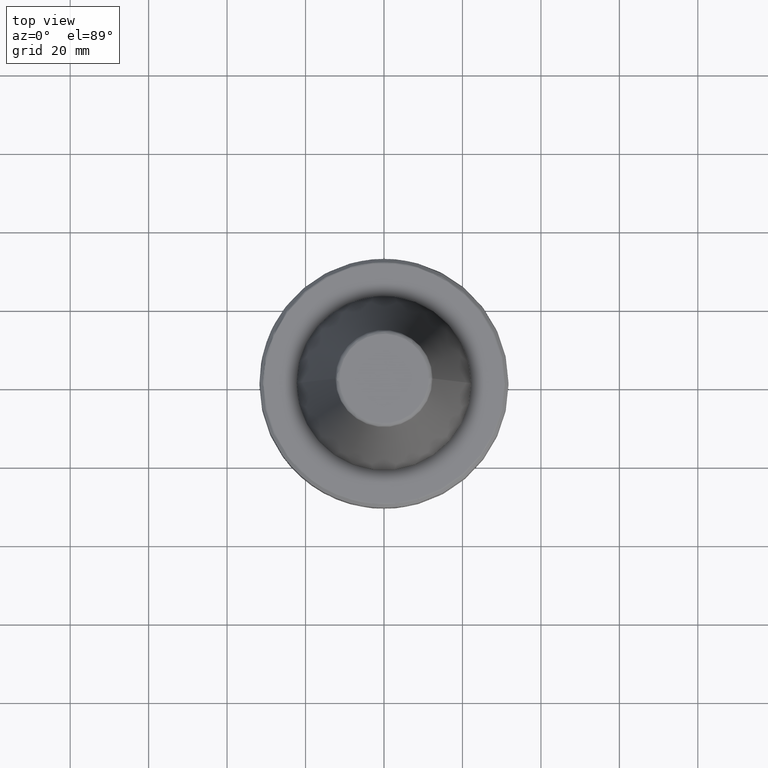
[diagram: clean part render]
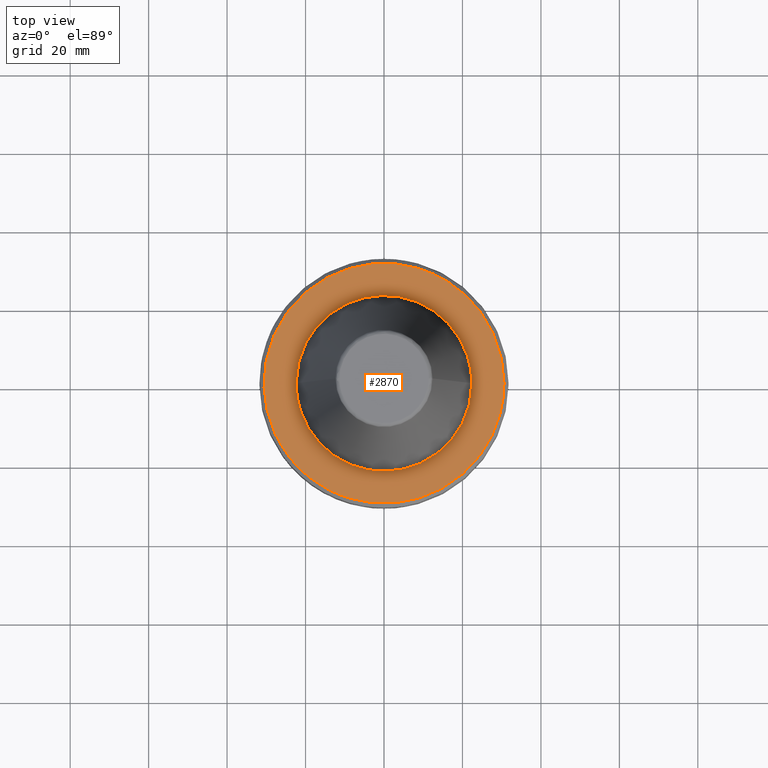
[diagram: same view with one face highlighted and labeled with its STEP entity id]
A machine part, top view. The second image highlights one B-rep face of the part: STEP entity #2870.
In plain terms, the highlighted planar face has unit normal (0, 0, 1).
Its self-contained STEP definition (entity closure, byte-faithful):
#2 = CARTESIAN_POINT ( 'NONE',  ( -20.94241909987582100, 7.949210498685300100, -3.200000000000003300 ) ) ;
#5 = CARTESIAN_POINT ( 'NONE',  ( -11.62329757014452800, 28.33583760078357400, -3.200000000000002400 ) ) ;
#6 = CARTESIAN_POINT ( 'NONE',  ( -21.05388026314446000, 7.652045630583237400, -3.200000000000003300 ) ) ;
#7 = CARTESIAN_POINT ( 'NONE',  ( -24.26260340259809600, 18.63100279130983900, -3.200000000000003700 ) ) ;
#9 = CARTESIAN_POINT ( 'NONE',  ( -8.749999999999962700, 29.30593451889332400, -3.200000000000002800 ) ) ;
#10 = CARTESIAN_POINT ( 'NONE',  ( -16.73340307642833100, 25.61393462944964800, -3.200000000000003700 ) ) ;
#14 = CARTESIAN_POINT ( 'NONE',  ( -17.50055599941003200, 25.08445269890840400, -3.200000000000003300 ) ) ;
#15 = CARTESIAN_POINT ( 'NONE',  ( -23.17496761740579100, 19.96233499371095000, -3.200000000000003300 ) ) ;
#17 = CARTESIAN_POINT ( 'NONE',  ( -21.26570261125549500, 7.054554276574882500, -3.200000000000003300 ) ) ;
#19 = ORIENTED_EDGE ( 'NONE', *, *, #1304, .T. ) ;
#20 = CARTESIAN_POINT ( 'NONE',  ( -21.64494739377256500, 5.846925097341269000, -3.200000000000004200 ) ) ;
#23 = CARTESIAN_POINT ( 'NONE',  ( -23.67667543167816300, 19.36078262650633500, -3.200000000000003700 ) ) ;
#24 = CARTESIAN_POINT ( 'NONE',  ( 18.53468170720398700, 12.57918310160851200, -3.200000000000003300 ) ) ;
#25 = CARTESIAN_POINT ( 'NONE',  ( -13.53928854121346100, 27.43651020382968800, -3.200000000000002400 ) ) ;
#31 = CARTESIAN_POINT ( 'NONE',  ( -21.89390021243578500, 4.790134707340608400, -3.200000000000003700 ) ) ;
#34 = CARTESIAN_POINT ( 'NONE',  ( -22.03016962878425400, 4.053654801116158200, -3.200000000000003700 ) ) ;
#36 = CARTESIAN_POINT ( 'NONE',  ( -22.03380064768137800, 4.033863417743302400, -3.200000000000005100 ) ) ;
#39 = CARTESIAN_POINT ( 'NONE',  ( -22.39999999999999900, 2.743208830090071000E-015, -3.200000000000002800 ) ) ;
#44 = CARTESIAN_POINT ( 'NONE',  ( -22.04146974406501200, 3.991746215251227500, -3.200000000000003300 ) ) ;
#45 = CARTESIAN_POINT ( 'NONE',  ( -24.82288649365629100, 17.88588114724057800, -3.200000000000002000 ) ) ;
#49 = CARTESIAN_POINT ( 'NONE',  ( -22.05288208987398900, 3.928562165309797300, -3.200000000000004200 ) ) ;
#52 = CARTESIAN_POINT ( 'NONE',  ( -22.07887180539631800, 3.781074992023178100, -3.200000000000003700 ) ) ;
#54 = CARTESIAN_POINT ( 'NONE',  ( -20.86055755905005400, 8.160831267535913400, -3.200000000000002800 ) ) ;
#55 = CARTESIAN_POINT ( 'NONE',  ( -30.46677238502198600, 2.680059272108629400, -3.200000000000003300 ) ) ;
#56 = CARTESIAN_POINT ( 'NONE',  ( -22.12829487097974400, 3.485869751756840900, -3.200000000000003700 ) ) ;
#61 = CARTESIAN_POINT ( 'NONE',  ( -22.21691554030176600, 2.894535696451789400, -3.200000000000002800 ) ) ;
#69 = CARTESIAN_POINT ( 'NONE',  ( -22.35325503156639800, 1.708173286752138400, -3.200000000000002800 ) ) ;
#71 = CARTESIAN_POINT ( 'NONE',  ( -29.48124923291816700, -8.141340568239183300, -3.200000000000004200 ) ) ;
#75 = CARTESIAN_POINT ( 'NONE',  ( 22.40000000000000200, 1.370271814684898400, -3.200000000000003300 ) ) ;
#81 = CARTESIAN_POINT ( 'NONE',  ( 22.03380064768137800, -4.033863417743300600, -3.200000000000005100 ) ) ;
#92 = CARTESIAN_POINT ( 'NONE',  ( 20.07996867655782900, -9.978249319575578400, -3.200000000000002800 ) ) ;
#96 = CARTESIAN_POINT ( 'NONE',  ( 19.73326017959506400, 10.64749210004908500, -3.200000000000003300 ) ) ;
#101 = CARTESIAN_POINT ( 'NONE',  ( -22.40000000000000600, 0.6849581371417911000, -3.200000000000004200 ) ) ;
#102 = CARTESIAN_POINT ( 'NONE',  ( 12.41893087787976500, -18.64241366108458600, -3.200000000000002800 ) ) ;
#103 = CARTESIAN_POINT ( 'NONE',  ( -22.39999999999999900, 2.743208830090071000E-015, -3.200000000000002800 ) ) ;
#113 = CARTESIAN_POINT ( 'NONE',  ( 5.317766869424311000, -21.76506777192885900, -3.200000000000003300 ) ) ;
#128 = CARTESIAN_POINT ( 'NONE',  ( -20.54870396913424800, 8.948981895704992700, -3.200000000000004200 ) ) ;
#131 = CARTESIAN_POINT ( 'NONE',  ( -3.928543594394218200, -22.05288552601365700, -3.200000000000003700 ) ) ;
#134 = CARTESIAN_POINT ( 'NONE',  ( -20.89346074650074300, 8.076228125964304300, -3.200000000000003700 ) ) ;
#138 = B_SPLINE_CURVE_WITH_KNOTS ( 'NONE', 3,
 ( #2575, #1870, #5, #25, #1213, #2979, #718, #2032, #1301, #1296, #10, #14, #778, #1236, #2840, #1335, #639, #2357, #15, #2568, #23, #141, #7, #45, #1847, #307, #2100, #576, #2339, #836, #2609, #1086, #2837, #1330, #3045, #1590, #55, #1863, #321, #2111, #587, #2353, #846, #2622, #1102, #2850, #1342, #3054, #1606, #71, #1877, #335, #2125, #602, #2364, #866, #2635, #1114, #2866, #1355, #3066, #1620 ),
 .UNSPECIFIED., .F., .F.,
 ( 4, 1, 1, 1, 1, 2, 2, 1, 2, 2, 2, 1, 1, 2, 2, 1, 1, 1, 2, 2, 2, 1, 1, 1, 1, 2, 2, 1, 2, 2, 2, 1, 1, 2, 2, 1, 1, 1, 2, 2, 4 ),
 ( 0.0000000000000000000, 0.06249999999999977800, 0.09374999999999962500, 0.1093749999999995000, 0.1171874999999993600, 0.1210937499999992900, 0.1249999999999992200, 0.1562499999999992200, 0.1718749999999992200, 0.1874999999999992200, 0.2499999999999996700, 0.2812499999999998300, 0.2968750000000000600, 0.3046875000000001100, 0.3125000000000002200, 0.3437500000000007800, 0.3593750000000011100, 0.3671875000000011700, 0.3710937500000012200, 0.3750000000000012800, 0.5000000000000000000, 0.5624999999999994400, 0.5937499999999991100, 0.6093749999999988900, 0.6171874999999988900, 0.6210937499999988900, 0.6249999999999988900, 0.6562499999999986700, 0.6718749999999984500, 0.6874999999999983300, 0.7499999999999978900, 0.7812499999999976700, 0.7968749999999975600, 0.8046874999999974500, 0.8124999999999973400, 0.8437499999999972200, 0.8593749999999970000, 0.8671874999999970000, 0.8710937499999971100, 0.8749999999999972200, 1.000000000000000000 ),
 .UNSPECIFIED. ) ;
#141 = CARTESIAN_POINT ( 'NONE',  ( -23.77638626441127900, 19.23818591257622800, -3.200000000000003700 ) ) ;
#143 = CARTESIAN_POINT ( 'NONE',  ( -11.93926672244148300, -18.95319761216261500, -3.200000000000003700 ) ) ;
#145 = CARTESIAN_POINT ( 'NONE',  ( -24.35467712833948200, -18.50000000000000000, -3.199999999999994400 ) ) ;
#147 = AXIS2_PLACEMENT_3D ( 'NONE', #415, #407, #391 ) ;
#165 = CARTESIAN_POINT ( 'NONE',  ( -20.57597625708056900, -8.857439276874359300, -3.200000000000003300 ) ) ;
#173 = CARTESIAN_POINT ( 'NONE',  ( 3.485802656817007500, 22.12830728541987600, -3.200000000000003700 ) ) ;
#177 = DIRECTION ( 'NONE',  ( -1.000000000000000000, 0.0000000000000000000, 0.0000000000000000000 ) ) ;
#178 = CARTESIAN_POINT ( 'NONE',  ( -19.16283711800834800, -11.62407890262997300, -3.200000000000004200 ) ) ;
#180 = DIRECTION ( 'NONE',  ( -0.0000000000000000000, -0.0000000000000000000, -1.000000000000000000 ) ) ;
#185 = CARTESIAN_POINT ( 'NONE',  ( 0.0000000000000000000, 0.0000000000000000000, -3.199999999999994400 ) ) ;
#194 = CARTESIAN_POINT ( 'NONE',  ( 21.99665153889302300, 4.232134916936443500, -3.200000000000003700 ) ) ;
#208 = CARTESIAN_POINT ( 'NONE',  ( 11.13317075176899700, 19.44402825676657900, -3.200000000000003300 ) ) ;
#216 = CARTESIAN_POINT ( 'NONE',  ( -10.64749210004020900, 19.73326017959945800, -3.200000000000003300 ) ) ;
#235 = FACE_OUTER_BOUND ( 'NONE', #362, .T. ) ;
#298 = CARTESIAN_POINT ( 'NONE',  ( 5.846925097304805700, 21.64494739378783800, -3.200000000000003300 ) ) ;
#307 = CARTESIAN_POINT ( 'NONE',  ( -25.73240088653741600, 16.53138120581128900, -3.200000000000002800 ) ) ;
#308 = CARTESIAN_POINT ( 'NONE',  ( -4.388029393849129700, 21.96633915484307300, -3.200000000000002800 ) ) ;
#312 = CARTESIAN_POINT ( 'NONE',  ( 18.64241366108053200, 12.41893087788442400, -3.200000000000002800 ) ) ;
#317 = VERTEX_POINT ( 'NONE', #2949 ) ;
#321 = CARTESIAN_POINT ( 'NONE',  ( -30.48577087148558800, 2.454392795803311600, -3.200000000000003300 ) ) ;
#333 = CARTESIAN_POINT ( 'NONE',  ( 22.02214483849513400, 4.097019922490422200, -3.200000000000003300 ) ) ;
#335 = CARTESIAN_POINT ( 'NONE',  ( -29.35224666533419600, -8.594763330005156000, -3.200000000000003700 ) ) ;
#343 = CARTESIAN_POINT ( 'NONE',  ( 22.04146974406501200, -3.991746215251227500, -3.200000000000003300 ) ) ;
#344 = CARTESIAN_POINT ( 'NONE',  ( 18.69693224295960100, 12.33667592247526000, -3.200000000000003300 ) ) ;
#349 = CARTESIAN_POINT ( 'NONE',  ( 19.10378740223179500, -11.69915882733411800, -3.200000000000003300 ) ) ;
#361 = CARTESIAN_POINT ( 'NONE',  ( 11.62407890261503100, -19.16283711801731500, -3.200000000000004200 ) ) ;
#362 = EDGE_LOOP ( 'NONE', ( #1489, #531, #1650, #569, #2815, #405, #19 ) ) ;
#371 = CARTESIAN_POINT ( 'NONE',  ( 4.232134916932282400, -21.99665153889404900, -3.200000000000002800 ) ) ;
#381 = CARTESIAN_POINT ( 'NONE',  ( -7.652045630590357900, -21.05388026314313900, -3.200000000000003300 ) ) ;
#391 = DIRECTION ( 'NONE',  ( -1.000000000000000000, 0.0000000000000000000, 0.0000000000000000000 ) ) ;
#405 = ORIENTED_EDGE ( 'NONE', *, *, #909, .F. ) ;
#407 = DIRECTION ( 'NONE',  ( -0.0000000000000000000, -0.0000000000000000000, -1.000000000000000000 ) ) ;
#409 = CARTESIAN_POINT ( 'NONE',  ( -18.53468170720844600, -12.57918310160406400, -3.200000000000003700 ) ) ;
#415 = CARTESIAN_POINT ( 'NONE',  ( 0.0000000000000000000, 0.0000000000000000000, -3.199999999999994400 ) ) ;
#420 = CARTESIAN_POINT ( 'NONE',  ( -20.75691791007927700, -8.420970184736862800, -3.200000000000003700 ) ) ;
#432 = CARTESIAN_POINT ( 'NONE',  ( -20.30988273414216700, -9.461840305410650100, -3.200000000000003300 ) ) ;
#436 = CARTESIAN_POINT ( 'NONE',  ( 22.39999999999999900, 0.0000000000000000000, -3.200000000000002800 ) ) ;
#463 = CARTESIAN_POINT ( 'NONE',  ( 21.09461488815928800, 7.570037086825539800, -3.200000000000003700 ) ) ;
#496 = CARTESIAN_POINT ( 'NONE',  ( -8.552344979802288800, 20.70346857996603900, -3.200000000000003700 ) ) ;
#500 = CARTESIAN_POINT ( 'NONE',  ( -15.29259727033228500, 16.38581280683081000, -3.200000000000004600 ) ) ;
#510 = B_SPLINE_CURVE_WITH_KNOTS ( 'NONE', 3,
 ( #816, #2587, #1071, #2823, #1319, #1573 ),
 .UNSPECIFIED., .F., .F.,
 ( 4, 2, 4 ),
 ( 0.0000000000000000000, 0.5000000000000000000, 1.000000000000000000 ),
 .UNSPECIFIED. ) ;
#531 = ORIENTED_EDGE ( 'NONE', *, *, #1805, .T. ) ;
#551 = CARTESIAN_POINT ( 'NONE',  ( -4.699014149692110300, 21.90294337551173600, -3.200000000000003300 ) ) ;
#562 = CARTESIAN_POINT ( 'NONE',  ( -9.461840305420629700, 20.30988273413888100, -3.200000000000002800 ) ) ;
#569 = ORIENTED_EDGE ( 'NONE', *, *, #2127, .F. ) ;
#576 = CARTESIAN_POINT ( 'NONE',  ( -25.94001894739544800, 16.20252111302404100, -3.200000000000004200 ) ) ;
#587 = CARTESIAN_POINT ( 'NONE',  ( -30.58430088160601200, 0.8252062185720239200, -3.200000000000003700 ) ) ;
#602 = CARTESIAN_POINT ( 'NONE',  ( -28.83626103397130100, -10.22499329440179300, -3.200000000000003300 ) ) ;
#608 = CARTESIAN_POINT ( 'NONE',  ( 21.89390021243320900, -4.790134707354472900, -3.200000000000002800 ) ) ;
#617 = CARTESIAN_POINT ( 'NONE',  ( 18.95319761216143900, -11.93926672244327800, -3.200000000000003300 ) ) ;
#627 = CARTESIAN_POINT ( 'NONE',  ( 9.461840305391049800, -20.30988273415392000, -3.200000000000002400 ) ) ;
#637 = CARTESIAN_POINT ( 'NONE',  ( 4.120618964788525000, -22.01774244189322300, -3.200000000000004200 ) ) ;
#639 = CARTESIAN_POINT ( 'NONE',  ( -21.79932372883452300, 21.46121072406592100, -3.200000000000003700 ) ) ;
#649 = CARTESIAN_POINT ( 'NONE',  ( -5.846925097357520000, -21.64494739376955200, -3.200000000000003300 ) ) ;
#662 = CARTESIAN_POINT ( 'NONE',  ( -8.948981895716038100, -20.54870396912782100, -3.200000000000003300 ) ) ;
#672 = CARTESIAN_POINT ( 'NONE',  ( -19.73326017960384200, -10.64749210002691100, -3.200000000000003300 ) ) ;
#684 = CARTESIAN_POINT ( 'NONE',  ( -20.81054813477575000, -8.287526769646335700, -3.200000000000004600 ) ) ;
#693 = CARTESIAN_POINT ( 'NONE',  ( 8.076228125959295000, 20.89346074650283200, -3.200000000000003300 ) ) ;
#711 = CARTESIAN_POINT ( 'NONE',  ( 3.928543594388940600, 22.05288552601366400, -3.200000000000003300 ) ) ;
#718 = CARTESIAN_POINT ( 'NONE',  ( -15.14158967653345100, 26.57327955334277500, -3.200000000000002800 ) ) ;
#729 = VERTEX_POINT ( 'NONE', #1368 ) ;
#756 = CARTESIAN_POINT ( 'NONE',  ( 13.55154730278610800, 17.90272195340462600, -3.200000000000004600 ) ) ;
#778 = CARTESIAN_POINT ( 'NONE',  ( -18.00675945256307000, 24.72355445173974100, -3.200000000000003700 ) ) ;
#816 = CARTESIAN_POINT ( 'NONE',  ( -18.50000000000000400, -24.35467712833947800, -3.199999999999994400 ) ) ;
#836 = CARTESIAN_POINT ( 'NONE',  ( -27.30134385076007700, 13.99881594513340700, -3.200000000000005100 ) ) ;
#846 = CARTESIAN_POINT ( 'NONE',  ( -30.57722589313795000, -0.7285515701935777500, -3.200000000000003700 ) ) ;
#851 = VERTEX_POINT ( 'NONE', #436 ) ;
#858 = CARTESIAN_POINT ( 'NONE',  ( 22.40000000000000200, -0.6849581371417888800, -3.200000000000003700 ) ) ;
#862 = CIRCLE ( 'NONE', #2423, 30.58431457505075800 ) ;
#866 = CARTESIAN_POINT ( 'NONE',  ( -28.24048383201137500, -11.74385340896537000, -3.200000000000003700 ) ) ;
#872 = CARTESIAN_POINT ( 'NONE',  ( 21.26570261125212700, -7.054554276593086600, -3.200000000000003700 ) ) ;
#881 = CARTESIAN_POINT ( 'NONE',  ( 4.790134707319770000, 21.89390021244450300, -3.200000000000004200 ) ) ;
#885 = CARTESIAN_POINT ( 'NONE',  ( 15.29259727031543800, -16.38581280684516300, -3.200000000000003300 ) ) ;
#897 = CARTESIAN_POINT ( 'NONE',  ( -12.41893087788384500, 18.64241366108111800, -3.200000000000003700 ) ) ;
#900 = CARTESIAN_POINT ( 'NONE',  ( 8.552344979793046400, -20.70346857997073900, -3.200000000000002800 ) ) ;
#909 = EDGE_CURVE ( 'NONE', #729, #2857, #2785, .T. ) ;
#912 = CARTESIAN_POINT ( 'NONE',  ( -17.90272195339482400, 13.55154730279589800, -3.200000000000002800 ) ) ;
#914 = CARTESIAN_POINT ( 'NONE',  ( 2.729104585128947900, -22.27531430456797800, -3.200000000000003300 ) ) ;
#925 = CARTESIAN_POINT ( 'NONE',  ( -8.160831267537076900, -20.86055755904984100, -3.200000000000003700 ) ) ;
#934 = CARTESIAN_POINT ( 'NONE',  ( -14.74595008205984400, -16.93238115508596000, -3.200000000000003300 ) ) ;
#941 = DIRECTION ( 'NONE',  ( -1.000000000000000000, 0.0000000000000000000, 0.0000000000000000000 ) ) ;
#943 = CARTESIAN_POINT ( 'NONE',  ( -11.62407890263757600, 19.16283711800585000, -3.200000000000004600 ) ) ;
#945 = CARTESIAN_POINT ( 'NONE',  ( -22.27534675084375200, -2.728929272683257200, -3.200000000000003700 ) ) ;
#953 = CARTESIAN_POINT ( 'NONE',  ( 12.09879233629374600, 18.85174391189705300, -3.200000000000003300 ) ) ;
#955 = DIRECTION ( 'NONE',  ( -0.0000000000000000000, -0.0000000000000000000, -1.000000000000000000 ) ) ;
#962 = CARTESIAN_POINT ( 'NONE',  ( 0.0000000000000000000, 0.0000000000000000000, -3.199999999999994400 ) ) ;
#994 = AXIS2_PLACEMENT_3D ( 'NONE', #185, #180, #177 ) ;
#1011 = B_SPLINE_CURVE_WITH_KNOTS ( 'NONE', 3,
 ( #2712, #1876, #1934, #2874, #2848, #3065, #3056, #3171, #3085, #3148, #3088, #2775, #2929, #2838, #2686, #2858, #2691, #2864, #2697, #2759, #2872, #2895, #2901, #2908, #2693, #2681, #2714, #2725, #2723, #2936, #2951, #2765, #2968, #2981, #2991, #2998, #3018, #2790, #3036, #3053, #3058, #3069, #2700, #3080, #2773, #3091, #3098, #3110, #3124, #3152, #1678, #2560 ),
 .UNSPECIFIED., .F., .F.,
 ( 4, 1, 1, 1, 1, 2, 2, 1, 1, 1, 1, 2, 2, 1, 1, 1, 2, 2, 2, 1, 1, 1, 2, 2, 1, 1, 1, 1, 2, 2, 1, 1, 1, 1, 2, 2, 4 ),
 ( 0.0000000000000000000, 0.06249999999999986100, 0.09374999999999982000, 0.1093749999999998100, 0.1171874999999997900, 0.1210937499999997500, 0.1249999999999996900, 0.1874999999999996400, 0.2187499999999996700, 0.2343749999999996900, 0.2421874999999997200, 0.2460937499999997500, 0.2499999999999997800, 0.3125000000000011700, 0.3437500000000019400, 0.3593750000000022800, 0.3671875000000023300, 0.3750000000000024400, 0.5000000000000040000, 0.5625000000000046600, 0.5937500000000050000, 0.6093750000000053300, 0.6171875000000054400, 0.6250000000000054400, 0.6875000000000041100, 0.7187500000000034400, 0.7343750000000031100, 0.7421875000000027800, 0.7460937500000027800, 0.7500000000000027800, 0.8125000000000035500, 0.8437500000000037700, 0.8593750000000040000, 0.8671875000000041100, 0.8710937500000041100, 0.8750000000000040000, 1.000000000000000000 ),
 .UNSPECIFIED. ) ;
#1019 = CARTESIAN_POINT ( 'NONE',  ( -8.333249188848311600, 20.79228629974507200, -3.200000000000003300 ) ) ;
#1030 = B_SPLINE_CURVE_WITH_KNOTS ( 'NONE', 3,
 ( #1645, #1630, #1624, #1621, #1618, #1609, #1604, #1597, #1592, #1588, #1582, #1579, #1577, #1570, #1567, #1565, #1558, #1544, #1543, #1538, #1535, #1528, #1523, #1514, #1510, #1502, #1494, #1484, #1473, #1463, #1456, #1454, #1444, #1442, #1423, #1421, #1412, #1408, #1404, #1399, #1395, #1392, #1386, #1378, #1371, #1367, #1364, #1358, #1354, #1347, #1344, #1340 ),
 .UNSPECIFIED., .F., .F.,
 ( 4, 1, 1, 1, 1, 2, 2, 1, 1, 1, 1, 2, 2, 1, 1, 1, 2, 2, 2, 1, 1, 1, 2, 2, 1, 1, 1, 1, 2, 2, 1, 1, 1, 1, 2, 2, 4 ),
 ( 0.0000000000000000000, 0.06250000000000399700, 0.09375000000000605100, 0.1093750000000069500, 0.1171875000000073400, 0.1210937500000075400, 0.1250000000000077200, 0.1875000000000101000, 0.2187500000000112700, 0.2343750000000117400, 0.2421875000000119600, 0.2460937500000120700, 0.2500000000000121600, 0.3125000000000113800, 0.3437500000000108800, 0.3593750000000106600, 0.3671875000000105500, 0.3750000000000104400, 0.5000000000000083300, 0.5625000000000073300, 0.5937500000000069900, 0.6093750000000067700, 0.6171875000000065500, 0.6250000000000064400, 0.6875000000000056600, 0.7187500000000052200, 0.7343750000000051100, 0.7421875000000048800, 0.7460937500000048800, 0.7500000000000047700, 0.8125000000000035500, 0.8437500000000028900, 0.8593750000000025500, 0.8671875000000023300, 0.8710937500000023300, 0.8750000000000022200, 1.000000000000000000 ),
 .UNSPECIFIED. ) ;
#1071 = CARTESIAN_POINT ( 'NONE',  ( -15.48610090928484300, -26.43773944750343200, -3.200000000000003700 ) ) ;
#1086 = CARTESIAN_POINT ( 'NONE',  ( -29.45234853339609400, 8.333223866088882700, -3.200000000000004600 ) ) ;
#1093 = CARTESIAN_POINT ( 'NONE',  ( 14.74595008207914200, 16.93238115506667200, -3.200000000000003700 ) ) ;
#1102 = CARTESIAN_POINT ( 'NONE',  ( -30.49913331157331700, -2.603266312739139600, -3.200000000000003300 ) ) ;
#1111 = AXIS2_PLACEMENT_3D ( 'NONE', #2707, #1162, #1698 ) ;
#1114 = CARTESIAN_POINT ( 'NONE',  ( -28.08831770797742400, -12.10176357994865800, -3.200000000000004200 ) ) ;
#1115 = CARTESIAN_POINT ( 'NONE',  ( -20.07996867657351800, 9.978249319549430400, -3.200000000000002800 ) ) ;
#1119 = CARTESIAN_POINT ( 'NONE',  ( 20.94241909987477300, -7.949210498690993300, -3.200000000000003300 ) ) ;
#1120 = CARTESIAN_POINT ( 'NONE',  ( 21.76506777192249900, 5.317766869450073500, -3.200000000000003300 ) ) ;
#1129 = CARTESIAN_POINT ( 'NONE',  ( 16.93238115510510200, -14.74595008204568100, -3.200000000000002400 ) ) ;
#1141 = CARTESIAN_POINT ( 'NONE',  ( 7.570037086805924400, -21.09461488816414500, -3.200000000000004600 ) ) ;
#1150 = CARTESIAN_POINT ( 'NONE',  ( -0.6848705029595145700, -22.40001621477894400, -3.200000000000003700 ) ) ;
#1162 = DIRECTION ( 'NONE',  ( 0.0000000000000000000, 0.0000000000000000000, 1.000000000000000000 ) ) ;
#1186 = CARTESIAN_POINT ( 'NONE',  ( -18.64241366108287700, -12.41893087788208100, -3.200000000000002800 ) ) ;
#1204 = CARTESIAN_POINT ( 'NONE',  ( -18.80157304491672900, 12.17662042414164600, -3.200000000000003700 ) ) ;
#1213 = CARTESIAN_POINT ( 'NONE',  ( -14.47847139621524800, 26.94337422490333700, -3.200000000000003700 ) ) ;
#1217 = CARTESIAN_POINT ( 'NONE',  ( 3.991735474926031200, 22.04147173132551500, -3.200000000000003300 ) ) ;
#1236 = CARTESIAN_POINT ( 'NONE',  ( -18.25550594147887700, 24.54047191477576800, -3.200000000000003300 ) ) ;
#1291 = CARTESIAN_POINT ( 'NONE',  ( -8.201342719090337900, -20.84466756721534600, -3.200000000000003300 ) ) ;
#1296 = CARTESIAN_POINT ( 'NONE',  ( -15.94270692369018900, 26.10782023935567500, -3.200000000000003700 ) ) ;
#1301 = CARTESIAN_POINT ( 'NONE',  ( -15.33791319425837700, 26.46043628646758000, -3.200000000000003700 ) ) ;
#1302 = CARTESIAN_POINT ( 'NONE',  ( -19.44402825676491300, 11.13317075177488400, -3.200000000000002800 ) ) ;
#1304 = EDGE_CURVE ( 'NONE', #729, #2799, #510, .T. ) ;
#1319 = CARTESIAN_POINT ( 'NONE',  ( -10.51070166330260700, -28.78023418526410300, -3.200000000000003300 ) ) ;
#1325 = CARTESIAN_POINT ( 'NONE',  ( -18.95319761216557500, 11.93926672243639300, -3.200000000000003700 ) ) ;
#1330 = CARTESIAN_POINT ( 'NONE',  ( -30.26424933310202900, 4.488890650636115300, -3.200000000000003300 ) ) ;
#1335 = CARTESIAN_POINT ( 'NONE',  ( -20.45246270162237300, 22.77429056695518400, -3.200000000000003300 ) ) ;
#1338 = CARTESIAN_POINT ( 'NONE',  ( -8.749999999999989300, -29.30593451889331600, -3.200000000000003700 ) ) ;
#1340 = CARTESIAN_POINT ( 'NONE',  ( 30.58431457505076500, 0.0000000000000000000, -3.200000000000002400 ) ) ;
#1342 = CARTESIAN_POINT ( 'NONE',  ( -30.05429890996132500, -5.703788022704041600, -3.200000000000003300 ) ) ;
#1344 = CARTESIAN_POINT ( 'NONE',  ( 30.58431457505075500, -1.561562219173742600, -3.200000000000002000 ) ) ;
#1347 = CARTESIAN_POINT ( 'NONE',  ( 30.46544302000310400, -3.113852862857872800, -3.200000000000003700 ) ) ;
#1349 = CARTESIAN_POINT ( 'NONE',  ( 22.07887180539631100, -3.781074992023176800, -3.200000000000004200 ) ) ;
#1354 = CARTESIAN_POINT ( 'NONE',  ( 30.22027043771730000, -4.705091276933539600, -3.200000000000003300 ) ) ;
#1355 = CARTESIAN_POINT ( 'NONE',  ( -27.05153356261248700, -14.47569103932740800, -3.200000000000003300 ) ) ;
#1358 = CARTESIAN_POINT ( 'NONE',  ( 30.21212539776376400, -4.757131534846872800, -3.200000000000003700 ) ) ;
#1361 = CARTESIAN_POINT ( 'NONE',  ( -2.729104585155505800, 22.27531430456797100, -3.200000000000003300 ) ) ;
#1362 = CARTESIAN_POINT ( 'NONE',  ( 20.86055755904973100, -8.160831267537631100, -3.200000000000003300 ) ) ;
#1364 = CARTESIAN_POINT ( 'NONE',  ( 30.19618385838875300, -4.857303280940390000, -3.200000000000003300 ) ) ;
#1365 = EDGE_CURVE ( 'NONE', #851, #2780, #2277, .T. ) ;
#1367 = CARTESIAN_POINT ( 'NONE',  ( 30.17190452209519300, -5.007473042379780600, -3.200000000000003700 ) ) ;
#1368 = CARTESIAN_POINT ( 'NONE',  ( -18.50000000000000400, -24.35467712833947800, -3.199999999999994400 ) ) ;
#1371 = CARTESIAN_POINT ( 'NONE',  ( 30.11268354679311800, -5.357254148498774300, -3.200000000000003300 ) ) ;
#1373 = CARTESIAN_POINT ( 'NONE',  ( 13.36824904409444200, -17.98107824669717700, -3.200000000000003300 ) ) ;
#1378 = CARTESIAN_POINT ( 'NONE',  ( 29.98396483372048800, -6.054356345111771500, -3.200000000000003300 ) ) ;
#1382 = CARTESIAN_POINT ( 'NONE',  ( 22.39999999999999900, 0.0000000000000000000, -3.200000000000002800 ) ) ;
#1386 = CARTESIAN_POINT ( 'NONE',  ( 29.68542035770125800, -7.438720675837822100, -3.200000000000003700 ) ) ;
#1389 = CARTESIAN_POINT ( 'NONE',  ( 8.287526769647206100, -20.81054813477557300, -3.200000000000002800 ) ) ;
#1392 = CARTESIAN_POINT ( 'NONE',  ( 29.35905586418660800, -8.608449995031669700, -3.200000000000003700 ) ) ;
#1395 = CARTESIAN_POINT ( 'NONE',  ( 29.09460387900148600, -9.429042497913064500, -3.200000000000003300 ) ) ;
#1399 = CARTESIAN_POINT ( 'NONE',  ( 29.07806852478166700, -9.479920520526370400, -3.200000000000002800 ) ) ;
#1400 = CARTESIAN_POINT ( 'NONE',  ( -2.894420676587548900, -22.21693682219911600, -3.200000000000003300 ) ) ;
#1404 = CARTESIAN_POINT ( 'NONE',  ( 29.04560989628995700, -9.578915174260089300, -3.200000000000003300 ) ) ;
#1408 = CARTESIAN_POINT ( 'NONE',  ( 28.99655467840899400, -9.727253638752760200, -3.200000000000002800 ) ) ;
#1412 = CARTESIAN_POINT ( 'NONE',  ( 28.87952157734977400, -10.07230210981365900, -3.200000000000003300 ) ) ;
#1414 = CARTESIAN_POINT ( 'NONE',  ( -11.13317075178937000, -19.44402825675649600, -3.200000000000003300 ) ) ;
#1420 = EDGE_CURVE ( 'NONE', #3112, #317, #1011, .T. ) ;
#1421 = CARTESIAN_POINT ( 'NONE',  ( 28.63517167121677800, -10.75810060091411900, -3.200000000000003300 ) ) ;
#1423 = CARTESIAN_POINT ( 'NONE',  ( 28.10533704289255800, -12.11250377902966100, -3.200000000000003300 ) ) ;
#1431 = CARTESIAN_POINT ( 'NONE',  ( -8.287526769645706900, 20.81054813477602400, -3.200000000000003700 ) ) ;
#1434 = CARTESIAN_POINT ( 'NONE',  ( -22.01774244189307000, -4.120618964789384700, -3.200000000000004600 ) ) ;
#1436 = PLANE ( 'NONE',  #1111 ) ;
#1442 = CARTESIAN_POINT ( 'NONE',  ( 27.58067624822907900, -13.24394569612520900, -3.200000000000003300 ) ) ;
#1444 = CARTESIAN_POINT ( 'NONE',  ( 27.15192223846726800, -14.07778958758799000, -3.200000000000004200 ) ) ;
#1446 = CARTESIAN_POINT ( 'NONE',  ( -22.00934566656799900, -4.165236834190293900, -3.200000000000004200 ) ) ;
#1454 = CARTESIAN_POINT ( 'NONE',  ( 27.10247095660475100, -14.17277443620226400, -3.200000000000004600 ) ) ;
#1456 = CARTESIAN_POINT ( 'NONE',  ( 27.00399422413413900, -14.35953925149104600, -3.200000000000003700 ) ) ;
#1457 = CARTESIAN_POINT ( 'NONE',  ( -20.70346857996706500, -8.552344979799164200, -3.200000000000002800 ) ) ;
#1461 = CARTESIAN_POINT ( 'NONE',  ( -4.165236834191523100, 22.00934566656745500, -3.200000000000003300 ) ) ;
#1463 = CARTESIAN_POINT ( 'NONE',  ( 26.85489300923814000, -14.63881711982511100, -3.200000000000003300 ) ) ;
#1473 = CARTESIAN_POINT ( 'NONE',  ( 26.49728736115015300, -15.28437999707740900, -3.200000000000003300 ) ) ;
#1484 = CARTESIAN_POINT ( 'NONE',  ( 25.74326481165152100, -16.55116382280660400, -3.200000000000002800 ) ) ;
#1489 = ORIENTED_EDGE ( 'NONE', *, *, #1951, .F. ) ;
#1494 = CARTESIAN_POINT ( 'NONE',  ( 25.03042619209957600, -17.59524950981668200, -3.200000000000003700 ) ) ;
#1502 = CARTESIAN_POINT ( 'NONE',  ( 23.51603751682958800, -19.62778218949304700, -3.200000000000004200 ) ) ;
#1510 = CARTESIAN_POINT ( 'NONE',  ( 22.40114452920497700, -20.89129424427457200, -3.200000000000005100 ) ) ;
#1514 = CARTESIAN_POINT ( 'NONE',  ( 21.10604030069152900, -22.13473294562100300, -3.200000000000003300 ) ) ;
#1523 = CARTESIAN_POINT ( 'NONE',  ( 21.03152593330742100, -22.20554153728287600, -3.200000000000004200 ) ) ;
#1528 = CARTESIAN_POINT ( 'NONE',  ( 20.87982665238260400, -22.34825637509866400, -3.200000000000003700 ) ) ;
#1535 = CARTESIAN_POINT ( 'NONE',  ( 20.65127541913195200, -22.56109142495586900, -3.200000000000003300 ) ) ;
#1538 = CARTESIAN_POINT ( 'NONE',  ( 20.11097302516972400, -23.04904609322405300, -3.200000000000003300 ) ) ;
#1542 = CARTESIAN_POINT ( 'NONE',  ( -4.790134707349893400, -21.89390021243405800, -3.200000000000003300 ) ) ;
#1543 = CARTESIAN_POINT ( 'NONE',  ( 19.00230350506911800, -23.99031363749924100, -3.200000000000003300 ) ) ;
#1544 = CARTESIAN_POINT ( 'NONE',  ( 18.00390437553806000, -24.73772846014450600, -3.200000000000002800 ) ) ;
#1558 = CARTESIAN_POINT ( 'NONE',  ( 17.27398592321570800, -25.23910393721158500, -3.200000000000003700 ) ) ;
#1565 = CARTESIAN_POINT ( 'NONE',  ( 17.23321866383767900, -25.26695455757974800, -3.200000000000003700 ) ) ;
#1567 = CARTESIAN_POINT ( 'NONE',  ( 17.14932757287630600, -25.32397030502925300, -3.200000000000003300 ) ) ;
#1570 = CARTESIAN_POINT ( 'NONE',  ( 17.02330348439927500, -25.40916637816325300, -3.200000000000003300 ) ) ;
#1573 = CARTESIAN_POINT ( 'NONE',  ( -8.749999999999989300, -29.30593451889331600, -3.200000000000003700 ) ) ;
#1577 = CARTESIAN_POINT ( 'NONE',  ( 16.72793511370805300, -25.60566437919411700, -3.200000000000003700 ) ) ;
#1579 = CARTESIAN_POINT ( 'NONE',  ( 16.13194971534636200, -25.98948903612863500, -3.200000000000003700 ) ) ;
#1582 = CARTESIAN_POINT ( 'NONE',  ( 14.91898429070602300, -26.72045296948885400, -3.200000000000003700 ) ) ;
#1588 = CARTESIAN_POINT ( 'NONE',  ( 13.84330885029949200, -27.28410426006817200, -3.200000000000003700 ) ) ;
#1590 = CARTESIAN_POINT ( 'NONE',  ( -30.44653720226487400, 2.907181702333923900, -3.200000000000002800 ) ) ;
#1592 = CARTESIAN_POINT ( 'NONE',  ( 13.06437642884064900, -27.65365956857851500, -3.200000000000003300 ) ) ;
#1597 = CARTESIAN_POINT ( 'NONE',  ( 13.02197758003927500, -27.67364674244808900, -3.200000000000002400 ) ) ;
#1604 = CARTESIAN_POINT ( 'NONE',  ( 12.93363446211499300, -27.71504625243790400, -3.200000000000003300 ) ) ;
#1606 = CARTESIAN_POINT ( 'NONE',  ( -29.60519698498038800, -7.688059179645428300, -3.200000000000003300 ) ) ;
#1609 = CARTESIAN_POINT ( 'NONE',  ( 12.80099507030910500, -27.77681930598339500, -3.200000000000003300 ) ) ;
#1612 = CARTESIAN_POINT ( 'NONE',  ( 12.17662042414226100, 18.80157304491611800, -3.200000000000003700 ) ) ;
#1613 = CARTESIAN_POINT ( 'NONE',  ( 22.12829487097975100, -3.485869751756841800, -3.200000000000003700 ) ) ;
#1618 = CARTESIAN_POINT ( 'NONE',  ( 12.49063015165916500, -27.91867295084845700, -3.200000000000003700 ) ) ;
#1620 = CARTESIAN_POINT ( 'NONE',  ( -24.35467712833948200, -18.50000000000000000, -3.199999999999994400 ) ) ;
#1621 = CARTESIAN_POINT ( 'NONE',  ( 11.86640829661450500, -28.19324632028085600, -3.200000000000002800 ) ) ;
#1624 = CARTESIAN_POINT ( 'NONE',  ( 10.60399651554605800, -28.70585737795477500, -3.200000000000003300 ) ) ;
#1626 = CARTESIAN_POINT ( 'NONE',  ( 20.54870396912526700, -8.948981895719937200, -3.200000000000003300 ) ) ;
#1628 = CARTESIAN_POINT ( 'NONE',  ( 21.44498038502154500, 6.542405141285997600, -3.200000000000003700 ) ) ;
#1630 = CARTESIAN_POINT ( 'NONE',  ( 9.497984010094588900, -29.08260568820517700, -3.200000000000004200 ) ) ;
#1636 = CARTESIAN_POINT ( 'NONE',  ( 12.57918310159964800, -18.53468170721171000, -3.200000000000003700 ) ) ;
#1645 = CARTESIAN_POINT ( 'NONE',  ( 8.749999999999978700, -29.30593451889331600, -3.200000000000003700 ) ) ;
#1650 = ORIENTED_EDGE ( 'NONE', *, *, #1420, .T. ) ;
#1651 = CARTESIAN_POINT ( 'NONE',  ( 8.749999999999978700, -29.30593451889331600, -3.200000000000003700 ) ) ;
#1652 = CARTESIAN_POINT ( 'NONE',  ( 6.542405141251660600, -21.44498038503001800, -3.200000000000003300 ) ) ;
#1655 = CARTESIAN_POINT ( 'NONE',  ( 20.57597625707672200, 8.857439276884063500, -3.200000000000003300 ) ) ;
#1666 = CARTESIAN_POINT ( 'NONE',  ( -3.781039048315599300, -22.07887845598923700, -3.200000000000003300 ) ) ;
#1675 = CARTESIAN_POINT ( 'NONE',  ( -4.053654801115866000, -22.03016962878430400, -3.200000000000003300 ) ) ;
#1678 = CARTESIAN_POINT ( 'NONE',  ( 10.24629117983596100, 28.85918037033940600, -3.200000000000003300 ) ) ;
#1685 = CARTESIAN_POINT ( 'NONE',  ( -18.37163761273726700, -12.81838125885408700, -3.200000000000003300 ) ) ;
#1697 = CARTESIAN_POINT ( 'NONE',  ( -21.99665153889350200, -4.232134916935223100, -3.200000000000003300 ) ) ;
#1698 = DIRECTION ( 'NONE',  ( 1.000000000000000000, 0.0000000000000000000, -0.0000000000000000000 ) ) ;
#1708 = CARTESIAN_POINT ( 'NONE',  ( -21.96633915484489900, -4.388029393845010300, -3.200000000000002400 ) ) ;
#1720 = CARTESIAN_POINT ( 'NONE',  ( -21.09461488816156600, -7.570037086819792400, -3.200000000000003300 ) ) ;
#1749 = CARTESIAN_POINT ( 'NONE',  ( 22.00934566656772200, 4.165236834190996400, -3.200000000000003700 ) ) ;
#1782 = CARTESIAN_POINT ( 'NONE',  ( 8.948981895700510900, 20.54870396913551300, -3.200000000000004200 ) ) ;
#1790 = CARTESIAN_POINT ( 'NONE',  ( 21.90294337551341300, 4.699014149688812500, -3.200000000000003300 ) ) ;
#1805 = EDGE_CURVE ( 'NONE', #1806, #3112, #1030, .T. ) ;
#1806 = VERTEX_POINT ( 'NONE', #1651 ) ;
#1837 = CARTESIAN_POINT ( 'NONE',  ( 9.978249319541589600, 20.07996867657573900, -3.200000000000003700 ) ) ;
#1847 = CARTESIAN_POINT ( 'NONE',  ( -25.43598951905045500, 16.98769424003135600, -3.200000000000003300 ) ) ;
#1851 = CARTESIAN_POINT ( 'NONE',  ( 8.201342719091291800, 20.84466756721487400, -3.200000000000003300 ) ) ;
#1863 = CARTESIAN_POINT ( 'NONE',  ( -30.47970956005919900, 2.528533460621357400, -3.200000000000003300 ) ) ;
#1870 = CARTESIAN_POINT ( 'NONE',  ( -9.916519147401958300, 28.95764183663175500, -3.200000000000005100 ) ) ;
#1876 = CARTESIAN_POINT ( 'NONE',  ( 30.58431457505076900, 0.7806124813004626800, -3.200000000000004200 ) ) ;
#1877 = CARTESIAN_POINT ( 'NONE',  ( -29.39627059819342100, -8.442993445798526500, -3.200000000000003300 ) ) ;
#1881 = CARTESIAN_POINT ( 'NONE',  ( 22.05288208987398600, -3.928562165309795500, -3.200000000000002400 ) ) ;
#1894 = CARTESIAN_POINT ( 'NONE',  ( 19.44402825675314600, -11.13317075179449500, -3.200000000000002800 ) ) ;
#1899 = CARTESIAN_POINT ( 'NONE',  ( 19.16283711800332400, 11.62407890264265100, -3.200000000000004200 ) ) ;
#1904 = CARTESIAN_POINT ( 'NONE',  ( 12.33667592247870100, -18.69693224295785000, -3.200000000000003700 ) ) ;
#1911 = CARTESIAN_POINT ( 'NONE',  ( 7.054554276547532900, 21.26570261126695300, -3.200000000000003300 ) ) ;
#1916 = CARTESIAN_POINT ( 'NONE',  ( 4.388029393839321600, -21.96633915484595100, -3.200000000000003300 ) ) ;
#1924 = CARTESIAN_POINT ( 'NONE',  ( -7.054554276587077200, -21.26570261125323600, -3.200000000000003300 ) ) ;
#1934 = CARTESIAN_POINT ( 'NONE',  ( 30.53973774190789600, 1.948180833657367600, -3.200000000000003300 ) ) ;
#1947 = CARTESIAN_POINT ( 'NONE',  ( 11.93926672243432900, 18.95319761216615700, -3.200000000000003300 ) ) ;
#1950 = CARTESIAN_POINT ( 'NONE',  ( -11.69915882733113200, -19.10378740223375300, -3.200000000000003700 ) ) ;
#1951 = EDGE_CURVE ( 'NONE', #1806, #2799, #862, .T. ) ;
#1957 = CARTESIAN_POINT ( 'NONE',  ( 11.69915882731925400, 19.10378740223963200, -3.200000000000003300 ) ) ;
#1961 = CARTESIAN_POINT ( 'NONE',  ( -16.38581280683807900, -15.29259727032501500, -3.200000000000002800 ) ) ;
#1966 = CARTESIAN_POINT ( 'NONE',  ( 16.38581280682843300, 15.29259727033466600, -3.200000000000004200 ) ) ;
#2016 = CARTESIAN_POINT ( 'NONE',  ( -12.81838125885966000, 18.37163761273170000, -3.200000000000003700 ) ) ;
#2032 = CARTESIAN_POINT ( 'NONE',  ( -15.27351905694648500, 26.49765628487122600, -3.200000000000002400 ) ) ;
#2059 = CARTESIAN_POINT ( 'NONE',  ( -14.43493962130356300, 17.15946693210979700, -3.200000000000003300 ) ) ;
#2071 = CARTESIAN_POINT ( 'NONE',  ( 30.58431457505076500, 0.0000000000000000000, -3.200000000000002400 ) ) ;
#2098 = CARTESIAN_POINT ( 'NONE',  ( 20.79228629974476700, 8.333249188848931500, -3.200000000000004200 ) ) ;
#2100 = CARTESIAN_POINT ( 'NONE',  ( -25.85726144148680900, 16.33427142387081300, -3.200000000000003300 ) ) ;
#2102 = CARTESIAN_POINT ( 'NONE',  ( -18.85174391189674700, 12.09879233629482400, -3.200000000000003700 ) ) ;
#2111 = CARTESIAN_POINT ( 'NONE',  ( -30.54018886217135500, 1.756429892729796300, -3.200000000000003700 ) ) ;
#2114 = CARTESIAN_POINT ( 'NONE',  ( -19.10378740223865900, 11.69915882732268200, -3.200000000000003300 ) ) ;
#2117 = CARTESIAN_POINT ( 'NONE',  ( 22.01774244189292800, 4.120618964789740900, -3.200000000000003300 ) ) ;
#2125 = CARTESIAN_POINT ( 'NONE',  ( -29.12987215588217500, -9.340167935495030000, -3.200000000000004200 ) ) ;
#2127 = EDGE_CURVE ( 'NONE', #2232, #317, #3059, .T. ) ;
#2134 = CARTESIAN_POINT ( 'NONE',  ( 22.03016962878432800, -4.053654801115721200, -3.200000000000003300 ) ) ;
#2139 = CARTESIAN_POINT ( 'NONE',  ( -6.542405141293531100, 21.44498038501770800, -3.200000000000003300 ) ) ;
#2144 = CARTESIAN_POINT ( 'NONE',  ( 18.80157304491760700, -12.17662042414044500, -3.200000000000003300 ) ) ;
#2153 = CARTESIAN_POINT ( 'NONE',  ( 10.64749210000075900, -19.73326017961952400, -3.200000000000003300 ) ) ;
#2156 = CARTESIAN_POINT ( 'NONE',  ( -4.120618964790005600, 22.01774244189279300, -3.200000000000004200 ) ) ;
#2160 = CARTESIAN_POINT ( 'NONE',  ( 4.165236834188593000, -22.00934566656831500, -3.200000000000002800 ) ) ;
#2172 = CARTESIAN_POINT ( 'NONE',  ( -7.949210498689112100, -20.94241909987511400, -3.200000000000003300 ) ) ;
#2179 = CARTESIAN_POINT ( 'NONE',  ( -12.17662042414134900, -18.80157304491702400, -3.200000000000003300 ) ) ;
#2182 = CARTESIAN_POINT ( 'NONE',  ( 21.96633915484396800, 4.388029393847367600, -3.200000000000003300 ) ) ;
#2185 = EDGE_CURVE ( 'NONE', #2780, #851, #2238, .T. ) ;
#2186 = CARTESIAN_POINT ( 'NONE',  ( 2.894420676554926500, 22.21693682219913100, -3.200000000000003700 ) ) ;
#2187 = CARTESIAN_POINT ( 'NONE',  ( -22.39999999999999900, 2.743208830090071000E-015, -3.200000000000002800 ) ) ;
#2200 = CARTESIAN_POINT ( 'NONE',  ( -20.79228629974538800, -8.333249188847371900, -3.200000000000003700 ) ) ;
#2232 = VERTEX_POINT ( 'NONE', #9 ) ;
#2236 = CARTESIAN_POINT ( 'NONE',  ( 4.033857983395490600, 22.03380165318768700, -3.200000000000003700 ) ) ;
#2238 = B_SPLINE_CURVE_WITH_KNOTS ( 'NONE', 3,
 ( #103, #101, #69, #61, #56, #52, #49, #44, #36, #34, #31, #20, #17, #6, #2, #134, #54, #2659, #128, #1115, #1302, #2114, #1325, #2102, #1204, #912, #2808, #500, #2059, #2621, #2016, #2732, #897, #2801, #943, #216, #562, #2326, #496, #2939, #1019, #1431, #3113, #2139, #2455, #551, #308, #3121, #1461, #2156, #2731, #1361, #2948, #2319, #2580, #2186, #173, #3211, #711, #1217, #2236, #2379, #881, #298, #1911, #2702, #2290, #693, #3140, #1851, #1782, #1837, #208, #1957, #1947, #953, #1612, #756, #1093, #1966, #2429, #2828, #2885, #24, #312, #344, #1899, #96, #2601, #1655, #2267, #2878, #2098, #2993, #463, #1628, #1120, #1790, #2182, #194, #1749, #2117, #333, #2675, #75, #1382 ),
 .UNSPECIFIED., .F., .F.,
 ( 4, 1, 1, 1, 1, 1, 2, 2, 1, 1, 1, 1, 2, 2, 1, 1, 1, 2, 2, 2, 1, 1, 1, 2, 2, 1, 1, 1, 1, 2, 2, 1, 1, 1, 1, 1, 2, 2, 2, 1, 1, 1, 1, 1, 2, 2, 1, 1, 1, 1, 2, 2, 1, 1, 1, 2, 2, 2, 1, 1, 1, 2, 2, 1, 1, 1, 1, 2, 2, 1, 1, 1, 1, 1, 2, 2, 4 ),
 ( 0.0000000000000000000, 0.03124999999999894500, 0.04687499999999843200, 0.05468749999999818900, 0.05859374999999806400, 0.06054687499999800200, 0.06152343749999798100, 0.06249999999999794600, 0.09374999999999758500, 0.1093749999999973800, 0.1171874999999972500, 0.1210937499999971600, 0.1230468749999971600, 0.1249999999999971400, 0.1562499999999969500, 0.1718749999999969200, 0.1796874999999969200, 0.1835937499999970300, 0.1874999999999971100, 0.2499999999999980000, 0.2812499999999983900, 0.2968749999999985600, 0.3046874999999987200, 0.3085937499999987800, 0.3124999999999988900, 0.3437499999999991100, 0.3593749999999992200, 0.3671874999999993300, 0.3710937499999993900, 0.3730468749999993900, 0.3749999999999993900, 0.4062499999999988900, 0.4218749999999986100, 0.4296874999999985000, 0.4335937499999983900, 0.4355468749999983300, 0.4365234374999983300, 0.4374999999999982800, 0.4999999999999980000, 0.5312499999999977800, 0.5468749999999977800, 0.5546874999999976700, 0.5585937499999976700, 0.5605468749999976700, 0.5615234374999975600, 0.5624999999999975600, 0.5937499999999977800, 0.6093749999999980000, 0.6171874999999980000, 0.6210937499999981100, 0.6230468749999982200, 0.6249999999999982200, 0.6562499999999984500, 0.6718749999999986700, 0.6796874999999986700, 0.6835937499999987800, 0.6874999999999988900, 0.7499999999999980000, 0.7812499999999975600, 0.7968749999999974500, 0.8046874999999973400, 0.8085937499999973400, 0.8124999999999973400, 0.8437499999999973400, 0.8593749999999974500, 0.8671874999999974500, 0.8710937499999974500, 0.8730468749999974500, 0.8749999999999973400, 0.9062499999999981100, 0.9218749999999986700, 0.9296874999999987800, 0.9335937499999988900, 0.9355468749999990000, 0.9365234374999988900, 0.9374999999999988900, 1.000000000000000000 ),
 .UNSPECIFIED. ) ;
#2247 = EDGE_CURVE ( 'NONE', #2232, #2857, #138, .T. ) ;
#2267 = CARTESIAN_POINT ( 'NONE',  ( 20.70346857996501600, 8.552344979804368900, -3.200000000000002800 ) ) ;
#2277 = B_SPLINE_CURVE_WITH_KNOTS ( 'NONE', 3,
 ( #2630, #858, #2861, #3061, #1613, #1349, #1881, #343, #81, #2134, #608, #2372, #872, #2644, #1119, #2869, #1362, #3071, #1626, #92, #1894, #349, #617, #2383, #2144, #2656, #1129, #885, #2875, #1373, #3082, #1636, #102, #1904, #361, #2153, #627, #2393, #900, #2666, #2887, #1389, #1141, #1652, #113, #3093, #1916, #371, #2160, #637, #2411, #914, #2677, #1150, #2898, #1400, #3104, #1666, #131, #2905, #2695, #1675, #1542, #649, #1924, #381, #2172, #2420, #925, #1291, #662, #3126, #1414, #1950, #143, #2922, #2179, #2447, #934, #1961, #2910, #3133, #1685, #409, #1186, #2704, #178, #672, #432, #165, #1457, #420, #2200, #684, #1720, #2800, #2461, #3142, #1708, #1697, #1446, #1434, #3153, #945, #2940, #2187 ),
 .UNSPECIFIED., .F., .F.,
 ( 4, 1, 1, 1, 1, 1, 2, 2, 1, 1, 1, 1, 2, 2, 1, 1, 1, 2, 2, 2, 1, 1, 1, 2, 2, 1, 1, 1, 1, 2, 2, 1, 1, 1, 1, 1, 2, 2, 2, 1, 1, 1, 1, 1, 2, 2, 1, 1, 1, 1, 2, 2, 1, 1, 1, 2, 2, 2, 1, 1, 1, 2, 2, 1, 1, 1, 1, 2, 2, 1, 1, 1, 1, 1, 2, 2, 4 ),
 ( 0.0000000000000000000, 0.03125000000000063100, 0.04687500000000096500, 0.05468750000000111700, 0.05859375000000120000, 0.06054687500000123500, 0.06152343750000125600, 0.06250000000000127700, 0.09375000000000176200, 0.1093750000000020000, 0.1171875000000021200, 0.1210937500000021900, 0.1230468750000022100, 0.1250000000000022200, 0.1562500000000032500, 0.1718750000000037700, 0.1796875000000040200, 0.1835937500000041900, 0.1875000000000043600, 0.2500000000000076100, 0.2812500000000091000, 0.2968750000000098800, 0.3046875000000102700, 0.3085937500000104400, 0.3125000000000106600, 0.3437500000000118800, 0.3593750000000125500, 0.3671875000000128200, 0.3710937500000129900, 0.3730468750000131000, 0.3750000000000132100, 0.4062500000000142700, 0.4218750000000147700, 0.4296875000000149900, 0.4335937500000151500, 0.4355468750000152100, 0.4365234375000152100, 0.4375000000000152100, 0.5000000000000147700, 0.5312500000000145400, 0.5468750000000144300, 0.5546875000000143200, 0.5585937500000143200, 0.5605468750000142100, 0.5615234375000142100, 0.5625000000000142100, 0.5937500000000125500, 0.6093750000000116600, 0.6171875000000112100, 0.6210937500000111000, 0.6230468750000108800, 0.6250000000000107700, 0.6562500000000092100, 0.6718750000000084400, 0.6796875000000081000, 0.6835937500000078800, 0.6875000000000077700, 0.7500000000000048800, 0.7812500000000035500, 0.7968750000000028900, 0.8046875000000025500, 0.8085937500000025500, 0.8125000000000025500, 0.8437500000000021100, 0.8593750000000017800, 0.8671875000000016700, 0.8710937500000015500, 0.8730468750000014400, 0.8750000000000013300, 0.9062500000000010000, 0.9218750000000008900, 0.9296875000000007800, 0.9335937500000007800, 0.9355468750000007800, 0.9365234375000007800, 0.9375000000000008900, 1.000000000000000000 ),
 .UNSPECIFIED. ) ;
#2290 = CARTESIAN_POINT ( 'NONE',  ( 7.949210498676752200, 20.94241909987940900, -3.200000000000003300 ) ) ;
#2319 = CARTESIAN_POINT ( 'NONE',  ( 0.6848705029346544600, 22.40001621477894400, -3.200000000000003300 ) ) ;
#2326 = CARTESIAN_POINT ( 'NONE',  ( -8.857439276880176800, 20.57597625707865100, -3.200000000000003300 ) ) ;
#2339 = CARTESIAN_POINT ( 'NONE',  ( -25.98207429179444700, 16.13498759199492500, -3.200000000000003300 ) ) ;
#2353 = CARTESIAN_POINT ( 'NONE',  ( -30.58574494882112300, -0.1069271606753864200, -3.200000000000004200 ) ) ;
#2357 = CARTESIAN_POINT ( 'NONE',  ( -22.45144644050650100, 20.78517142375533300, -3.200000000000003300 ) ) ;
#2364 = CARTESIAN_POINT ( 'NONE',  ( -28.44688173158047600, -11.24038425301782600, -3.200000000000003300 ) ) ;
#2372 = CARTESIAN_POINT ( 'NONE',  ( 21.64494739376806700, -5.846925097365533100, -3.200000000000003700 ) ) ;
#2379 = CARTESIAN_POINT ( 'NONE',  ( 4.053654801116802100, 22.03016962878398000, -3.200000000000003300 ) ) ;
#2383 = CARTESIAN_POINT ( 'NONE',  ( 18.85174391189457700, -12.09879233629844300, -3.200000000000003700 ) ) ;
#2393 = CARTESIAN_POINT ( 'NONE',  ( 8.857439276862924900, -20.57597625708742200, -3.200000000000003700 ) ) ;
#2411 = CARTESIAN_POINT ( 'NONE',  ( 4.097017183233652400, -22.02214534546819300, -3.200000000000003700 ) ) ;
#2420 = CARTESIAN_POINT ( 'NONE',  ( -8.076228125966544300, -20.89346074650031000, -3.200000000000002800 ) ) ;
#2423 = AXIS2_PLACEMENT_3D ( 'NONE', #962, #955, #941 ) ;
#2429 = CARTESIAN_POINT ( 'NONE',  ( 17.15946693210564100, 14.43493962130772700, -3.200000000000003300 ) ) ;
#2447 = CARTESIAN_POINT ( 'NONE',  ( -13.55154730280065300, -17.90272195339007800, -3.200000000000004200 ) ) ;
#2455 = CARTESIAN_POINT ( 'NONE',  ( -5.317766869455712500, 21.76506777191963900, -3.200000000000003300 ) ) ;
#2461 = CARTESIAN_POINT ( 'NONE',  ( -21.76506777192550100, -5.317766869442518600, -3.200000000000003300 ) ) ;
#2560 = CARTESIAN_POINT ( 'NONE',  ( 8.750000000000010700, 29.30593451889330600, -3.200000000000003700 ) ) ;
#2568 = CARTESIAN_POINT ( 'NONE',  ( -23.47705769606591600, 19.60237854233147600, -3.200000000000003300 ) ) ;
#2575 = CARTESIAN_POINT ( 'NONE',  ( -8.749999999999962700, 29.30593451889332400, -3.200000000000002800 ) ) ;
#2580 = CARTESIAN_POINT ( 'NONE',  ( 1.708019926889657400, 22.35328340742955100, -3.200000000000003300 ) ) ;
#2587 = CARTESIAN_POINT ( 'NONE',  ( -17.03706203158651900, -25.46593605708777000, -3.200000000000003300 ) ) ;
#2601 = CARTESIAN_POINT ( 'NONE',  ( 20.30988273413558100, 9.461840305427294600, -3.200000000000003300 ) ) ;
#2609 = CARTESIAN_POINT ( 'NONE',  ( -28.31907149282532300, 11.80488663221846800, -3.200000000000003300 ) ) ;
#2621 = CARTESIAN_POINT ( 'NONE',  ( -13.36824904411653800, 17.98107824667833300, -3.200000000000003300 ) ) ;
#2622 = CARTESIAN_POINT ( 'NONE',  ( -30.56832190550034400, -1.037282440242273300, -3.200000000000002800 ) ) ;
#2630 = CARTESIAN_POINT ( 'NONE',  ( 22.39999999999999900, 0.0000000000000000000, -3.200000000000002800 ) ) ;
#2635 = CARTESIAN_POINT ( 'NONE',  ( -28.14951867897310900, -11.95872026365135100, -3.200000000000003300 ) ) ;
#2644 = CARTESIAN_POINT ( 'NONE',  ( 21.05388026314249200, -7.652045630593857300, -3.200000000000002800 ) ) ;
#2656 = CARTESIAN_POINT ( 'NONE',  ( 17.90272195338066700, -13.55154730281504500, -3.200000000000003300 ) ) ;
#2659 = CARTESIAN_POINT ( 'NONE',  ( -20.84466756721494800, 8.201342719091011100, -3.200000000000003300 ) ) ;
#2666 = CARTESIAN_POINT ( 'NONE',  ( 8.420970184733278100, -20.75691791008142000, -3.200000000000003300 ) ) ;
#2675 = CARTESIAN_POINT ( 'NONE',  ( 22.27534675084375900, 2.728929272695618500, -3.200000000000004200 ) ) ;
#2677 = CARTESIAN_POINT ( 'NONE',  ( 1.369741005919025600, -22.39996757044212200, -3.200000000000002400 ) ) ;
#2681 = CARTESIAN_POINT ( 'NONE',  ( 25.53517509617746100, 16.91770336007151000, -3.200000000000004200 ) ) ;
#2686 = CARTESIAN_POINT ( 'NONE',  ( 29.17179097118355100, 9.187465360224662100, -3.200000000000002800 ) ) ;
#2691 = CARTESIAN_POINT ( 'NONE',  ( 29.12613594598054700, 9.331192961517022200, -3.200000000000003700 ) ) ;
#2693 = CARTESIAN_POINT ( 'NONE',  ( 26.42690957762477000, 15.48792760816230200, -3.200000000000004200 ) ) ;
#2695 = CARTESIAN_POINT ( 'NONE',  ( -4.033857983397038700, -22.03380165318767700, -3.200000000000003300 ) ) ;
#2697 = CARTESIAN_POINT ( 'NONE',  ( 28.42400519015980700, 11.34454123683475600, -3.200000000000003300 ) ) ;
#2700 = CARTESIAN_POINT ( 'NONE',  ( 15.62062435591030300, 26.31643672381659400, -3.200000000000003300 ) ) ;
#2702 = CARTESIAN_POINT ( 'NONE',  ( 7.652045630567287500, 21.05388026315113900, -3.200000000000003300 ) ) ;
#2704 = CARTESIAN_POINT ( 'NONE',  ( -18.69693224295897600, -12.33667592247683800, -3.200000000000003300 ) ) ;
#2707 = CARTESIAN_POINT ( 'NONE',  ( 0.0000000000000000000, -1.695656695567372900E-016, -3.200000000000003300 ) ) ;
#2712 = CARTESIAN_POINT ( 'NONE',  ( 30.58431457505076500, 0.0000000000000000000, -3.200000000000002400 ) ) ;
#2714 = CARTESIAN_POINT ( 'NONE',  ( 24.02085740242565100, 18.95028892452742400, -3.200000000000003300 ) ) ;
#2718 = ORIENTED_EDGE ( 'NONE', *, *, #2185, .T. ) ;
#2723 = CARTESIAN_POINT ( 'NONE',  ( 22.22623960059610900, 21.01696416258792200, -3.200000000000003300 ) ) ;
#2725 = CARTESIAN_POINT ( 'NONE',  ( 23.22435209590758400, 19.93203895183621600, -3.200000000000003300 ) ) ;
#2731 = CARTESIAN_POINT ( 'NONE',  ( -4.097017183233237600, 22.02214534546820300, -3.200000000000004200 ) ) ;
#2732 = CARTESIAN_POINT ( 'NONE',  ( -12.57918310160740600, 18.53468170720509500, -3.200000000000003300 ) ) ;
#2759 = CARTESIAN_POINT ( 'NONE',  ( 27.83926536632630200, 12.67616131523395900, -3.200000000000003300 ) ) ;
#2765 = CARTESIAN_POINT ( 'NONE',  ( 21.33423715765493600, 21.91487604514498200, -3.200000000000004600 ) ) ;
#2773 = CARTESIAN_POINT ( 'NONE',  ( 13.74839770495371200, 27.32133677087585600, -3.200000000000003300 ) ) ;
#2775 = CARTESIAN_POINT ( 'NONE',  ( 29.51842591294481400, 8.022211266182456100, -3.200000000000002800 ) ) ;
#2780 = VERTEX_POINT ( 'NONE', #39 ) ;
#2785 = CIRCLE ( 'NONE', #994, 30.58431457505075800 ) ;
#2790 = CARTESIAN_POINT ( 'NONE',  ( 17.61641936751146900, 25.00162825174494000, -3.200000000000003700 ) ) ;
#2799 = VERTEX_POINT ( 'NONE', #1338 ) ;
#2800 = CARTESIAN_POINT ( 'NONE',  ( -21.44498038502552400, -6.542405141275941600, -3.200000000000003700 ) ) ;
#2801 = CARTESIAN_POINT ( 'NONE',  ( -12.33667592247588900, 18.69693224295928500, -3.200000000000003300 ) ) ;
#2808 = CARTESIAN_POINT ( 'NONE',  ( -16.93238115507141800, 14.74595008207439100, -3.200000000000002800 ) ) ;
#2815 = ORIENTED_EDGE ( 'NONE', *, *, #2247, .T. ) ;
#2823 = CARTESIAN_POINT ( 'NONE',  ( -12.21006217782009900, -28.10145510426029200, -3.200000000000002800 ) ) ;
#2828 = CARTESIAN_POINT ( 'NONE',  ( 17.98107824667522400, 13.36824904411966800, -3.200000000000003700 ) ) ;
#2837 = CARTESIAN_POINT ( 'NONE',  ( -29.91282126791659800, 6.576107746306028000, -3.200000000000003300 ) ) ;
#2838 = CARTESIAN_POINT ( 'NONE',  ( 29.21737119051369200, 9.042334779843997700, -3.200000000000003300 ) ) ;
#2840 = CARTESIAN_POINT ( 'NONE',  ( -19.50355204640433000, 23.59206616269363000, -3.200000000000002800 ) ) ;
#2846 = ORIENTED_EDGE ( 'NONE', *, *, #1365, .T. ) ;
#2848 = CARTESIAN_POINT ( 'NONE',  ( 30.32521173240781900, 3.981164943400970800, -3.200000000000004600 ) ) ;
#2850 = CARTESIAN_POINT ( 'NONE',  ( -30.36703951691635000, -3.848954711082630500, -3.200000000000002800 ) ) ;
#2857 = VERTEX_POINT ( 'NONE', #145 ) ;
#2858 = CARTESIAN_POINT ( 'NONE',  ( 29.14115916764536300, 9.284161809036305600, -3.200000000000004200 ) ) ;
#2861 = CARTESIAN_POINT ( 'NONE',  ( 22.35325503156640500, -1.708173286752136400, -3.200000000000003700 ) ) ;
#2864 = CARTESIAN_POINT ( 'NONE',  ( 28.85454279252167000, 10.17404257736835400, -3.200000000000003300 ) ) ;
#2866 = CARTESIAN_POINT ( 'NONE',  ( -28.05674127324254000, -12.17478045277713000, -3.200000000000003700 ) ) ;
#2869 = CARTESIAN_POINT ( 'NONE',  ( 20.89346074650010700, -8.076228125967638500, -3.200000000000002800 ) ) ;
#2870 = ADVANCED_FACE ( 'NONE', ( #235, #2919 ), #1436, .T. ) ;
#2872 = CARTESIAN_POINT ( 'NONE',  ( 27.52628396580672600, 13.33348093168900000, -3.200000000000003300 ) ) ;
#2874 = CARTESIAN_POINT ( 'NONE',  ( 30.40972197857451300, 3.304480764617957300, -3.200000000000003300 ) ) ;
#2875 = CARTESIAN_POINT ( 'NONE',  ( 14.43493962127408600, -17.15946693213492600, -3.200000000000003300 ) ) ;
#2878 = CARTESIAN_POINT ( 'NONE',  ( 20.75691791007806600, 8.420970184739907400, -3.200000000000002400 ) ) ;
#2885 = CARTESIAN_POINT ( 'NONE',  ( 18.37163761272988400, 12.81838125886147800, -3.200000000000003300 ) ) ;
#2887 = CARTESIAN_POINT ( 'NONE',  ( 8.333249188845540400, -20.79228629974647900, -3.200000000000002800 ) ) ;
#2895 = CARTESIAN_POINT ( 'NONE',  ( 27.38773233231200900, 13.61336996243875000, -3.200000000000003300 ) ) ;
#2898 = CARTESIAN_POINT ( 'NONE',  ( -1.708019926933151300, -22.35328340742955100, -3.200000000000003700 ) ) ;
#2901 = CARTESIAN_POINT ( 'NONE',  ( 27.29438307719158600, 13.79955834376026900, -3.200000000000002800 ) ) ;
#2905 = CARTESIAN_POINT ( 'NONE',  ( -3.991735474929086100, -22.04147173132551900, -3.200000000000004200 ) ) ;
#2908 = CARTESIAN_POINT ( 'NONE',  ( 27.24785232258903300, 13.89121605744882800, -3.200000000000002800 ) ) ;
#2910 = CARTESIAN_POINT ( 'NONE',  ( -17.15946693212253000, -14.43493962129083400, -3.200000000000003300 ) ) ;
#2919 = FACE_BOUND ( 'NONE', #3135, .T. ) ;
#2922 = CARTESIAN_POINT ( 'NONE',  ( -12.09879233629750000, -18.85174391189518800, -3.200000000000003300 ) ) ;
#2929 = CARTESIAN_POINT ( 'NONE',  ( 29.32115263377738800, 8.703095408813366500, -3.200000000000003300 ) ) ;
#2936 = CARTESIAN_POINT ( 'NONE',  ( 21.70996927684693700, 21.54431431268664100, -3.200000000000003700 ) ) ;
#2939 = CARTESIAN_POINT ( 'NONE',  ( -8.420970184738692400, 20.75691791007867700, -3.200000000000002800 ) ) ;
#2940 = CARTESIAN_POINT ( 'NONE',  ( -22.40000000000000200, -1.370271814672537000, -3.200000000000003300 ) ) ;
#2948 = CARTESIAN_POINT ( 'NONE',  ( -1.369741005869324000, 22.39996757044212600, -3.200000000000003300 ) ) ;
#2949 = CARTESIAN_POINT ( 'NONE',  ( 8.750000000000010700, 29.30593451889330600, -3.200000000000003700 ) ) ;
#2951 = CARTESIAN_POINT ( 'NONE',  ( 21.48502183607726200, 21.76708313659813100, -3.200000000000003300 ) ) ;
#2968 = CARTESIAN_POINT ( 'NONE',  ( 21.25737027115100000, 21.98943496480512400, -3.200000000000003300 ) ) ;
#2979 = CARTESIAN_POINT ( 'NONE',  ( -14.94335966608296900, 26.68593816532780500, -3.200000000000003700 ) ) ;
#2981 = CARTESIAN_POINT ( 'NONE',  ( 20.58104395211121900, 22.63882571496444700, -3.200000000000003700 ) ) ;
#2991 = CARTESIAN_POINT ( 'NONE',  ( 19.64699716446745000, 23.46525560292352000, -3.200000000000003300 ) ) ;
#2993 = CARTESIAN_POINT ( 'NONE',  ( 20.81054813477589200, 8.287526769645976900, -3.200000000000004200 ) ) ;
#2998 = CARTESIAN_POINT ( 'NONE',  ( 18.50078877826594200, 24.36043102576566000, -3.200000000000003700 ) ) ;
#3018 = CARTESIAN_POINT ( 'NONE',  ( 17.91356280167756400, 24.79077054224254400, -3.200000000000002800 ) ) ;
#3036 = CARTESIAN_POINT ( 'NONE',  ( 17.48831565732488300, 25.09107183108823900, -3.200000000000003700 ) ) ;
#3045 = CARTESIAN_POINT ( 'NONE',  ( -30.39351583442260800, 3.435970030487011300, -3.200000000000002400 ) ) ;
#3053 = CARTESIAN_POINT ( 'NONE',  ( 17.40274506739706300, 25.15049554832967300, -3.200000000000002800 ) ) ;
#3054 = CARTESIAN_POINT ( 'NONE',  ( -29.86976700628475400, -6.624788100476839000, -3.200000000000002400 ) ) ;
#3056 = CARTESIAN_POINT ( 'NONE',  ( 30.25683737115480900, 4.463908765852453400, -3.200000000000004200 ) ) ;
#3058 = CARTESIAN_POINT ( 'NONE',  ( 17.35872434408156600, 25.18089566416637100, -3.200000000000002800 ) ) ;
#3059 = CIRCLE ( 'NONE', #147, 30.58431457505075800 ) ;
#3061 = CARTESIAN_POINT ( 'NONE',  ( 22.21691554030176600, -2.894535696451787700, -3.200000000000003700 ) ) ;
#3065 = CARTESIAN_POINT ( 'NONE',  ( 30.27808101819946900, 4.319140586118157500, -3.200000000000004200 ) ) ;
#3066 = CARTESIAN_POINT ( 'NONE',  ( -25.82766579421682000, -16.56085603399211300, -3.200000000000003300 ) ) ;
#3069 = CARTESIAN_POINT ( 'NONE',  ( 16.64808964168480200, 25.66906082886738400, -3.200000000000003700 ) ) ;
#3071 = CARTESIAN_POINT ( 'NONE',  ( 20.84466756721549900, -8.201342719090085600, -3.200000000000003300 ) ) ;
#3080 = CARTESIAN_POINT ( 'NONE',  ( 14.37953634106792800, 26.99856130462769200, -3.200000000000002800 ) ) ;
#3082 = CARTESIAN_POINT ( 'NONE',  ( 12.81838125884675600, -18.37163761274268800, -3.200000000000003300 ) ) ;
#3085 = CARTESIAN_POINT ( 'NONE',  ( 30.23542110148261800, 4.606748291940475900, -3.200000000000003300 ) ) ;
#3088 = CARTESIAN_POINT ( 'NONE',  ( 29.87181404183985800, 6.650821378642080900, -3.200000000000002800 ) ) ;
#3091 = CARTESIAN_POINT ( 'NONE',  ( 13.43017972972334200, 27.47815279796059000, -3.200000000000003700 ) ) ;
#3093 = CARTESIAN_POINT ( 'NONE',  ( 4.699014149673790700, -21.90294337551711800, -3.200000000000002800 ) ) ;
#3098 = CARTESIAN_POINT ( 'NONE',  ( 13.29323302808749200, 27.54438001541703700, -3.200000000000003300 ) ) ;
#3104 = CARTESIAN_POINT ( 'NONE',  ( -3.485802656836038500, -22.12830728541986500, -3.200000000000002800 ) ) ;
#3110 = CARTESIAN_POINT ( 'NONE',  ( 13.20180910046485500, 27.58831379343373800, -3.200000000000003700 ) ) ;
#3112 = VERTEX_POINT ( 'NONE', #2071 ) ;
#3113 = CARTESIAN_POINT ( 'NONE',  ( -7.570037086829847400, 21.09461488815710700, -3.200000000000003700 ) ) ;
#3121 = CARTESIAN_POINT ( 'NONE',  ( -4.232134916937351200, 21.99665153889256400, -3.200000000000003300 ) ) ;
#3124 = CARTESIAN_POINT ( 'NONE',  ( 13.15427429998768200, 27.61100680695566500, -3.200000000000002400 ) ) ;
#3126 = CARTESIAN_POINT ( 'NONE',  ( -9.978249319568748300, -20.07996867656229900, -3.200000000000003300 ) ) ;
#3133 = CARTESIAN_POINT ( 'NONE',  ( -17.98107824668787200, -13.36824904410699900, -3.200000000000003300 ) ) ;
#3135 = EDGE_LOOP ( 'NONE', ( #2718, #2846 ) ) ;
#3140 = CARTESIAN_POINT ( 'NONE',  ( 8.160831267533355400, 20.86055755905112700, -3.200000000000003300 ) ) ;
#3142 = CARTESIAN_POINT ( 'NONE',  ( -21.90294337551515700, -4.699014149684408000, -3.200000000000002400 ) ) ;
#3148 = CARTESIAN_POINT ( 'NONE',  ( 30.10416084471024000, 5.458850156844222900, -3.200000000000004600 ) ) ;
#3152 = CARTESIAN_POINT ( 'NONE',  ( 11.69968984085064900, 28.30117587104800200, -3.200000000000003700 ) ) ;
#3153 = CARTESIAN_POINT ( 'NONE',  ( -22.02214483849513000, -4.097019922490617600, -3.200000000000003300 ) ) ;
#3171 = CARTESIAN_POINT ( 'NONE',  ( 30.24244276878575700, 4.560403435833683800, -3.200000000000003700 ) ) ;
#3211 = CARTESIAN_POINT ( 'NONE',  ( 3.781039048305402600, 22.07887845598924800, -3.200000000000003700 ) ) ;